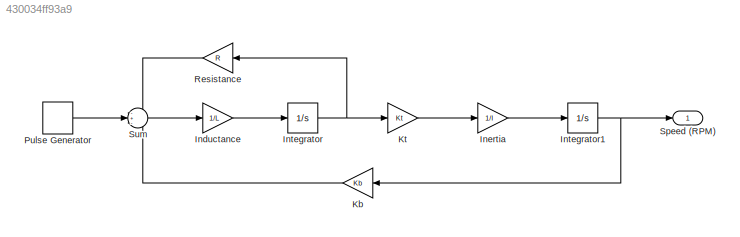
MODEL slx_430034ff93a9
KIND model
CONFIG AbsTol = auto
CONFIG EnableMultiTasking = off
CONFIG FixedStep = auto
CONFIG MaxStep = auto
CONFIG MinStep = auto
CONFIG RelTol = 1e-3
CONFIG SampleTimeConstraint = Unconstrained
CONFIG SolverName = VariableStepAuto
CONFIG StartTime = 0.0
CONFIG StopTime = 5.0
WORKSPACE source: mxarray member
WORKSPACE I = 3.88e-07
WORKSPACE Kb = 0.000275
WORKSPACE Kt = 0.0059
WORKSPACE L = 0.00011
WORKSPACE R = 1.71
WORKSPACE b = 0
BLOCK [Gain] Inductance
  Gain = 1/L
BLOCK [Gain] Inertia
  Gain = 1/I
BLOCK [Integrator] Integrator
  Ports = [1, 1]
BLOCK [Integrator] Integrator1
  Ports = [1, 1]
BLOCK [Gain] Kb
  Gain = Kb
BLOCK [Gain] Kt
  Gain = Kt
BLOCK [DiscretePulseGenerator] Pulse Generator
  Period = 0.001
  Ports = [0, 1]
  PulseType = Time based
  PulseWidth = 10
BLOCK [Gain] Resistance
  Gain = R
BLOCK [Outport] Speed (RPM)
BLOCK [Sum] Sum
  Inputs = -+-
  Ports = [3, 1]
LINE Inductance:1 -> Integrator:1
LINE Inertia:1 -> Integrator1:1
NET Integrator1:1 -> Kb:1, Speed (RPM):1
NET Integrator:1 -> Kt:1, Resistance:1
LINE Kb:1 -> Sum:3
LINE Kt:1 -> Inertia:1
LINE Pulse Generator:1 -> Sum:2
LINE Resistance:1 -> Sum:1
LINE Sum:1 -> Inductance:1
note: NET lines group one-source signal fan-out (src -> all destinations, sorted); 1:1 wires keep LINE
